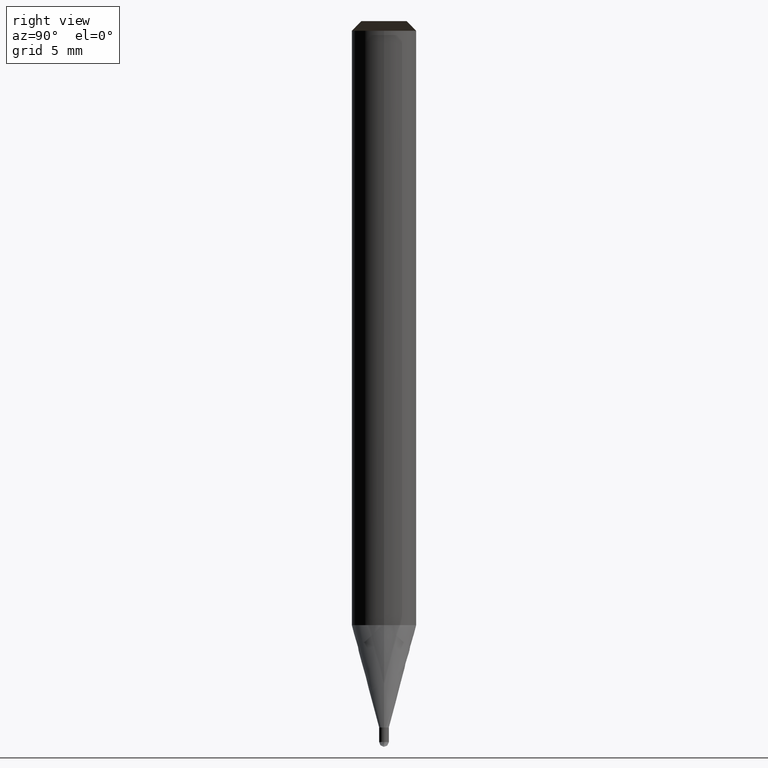
[diagram: clean part render]
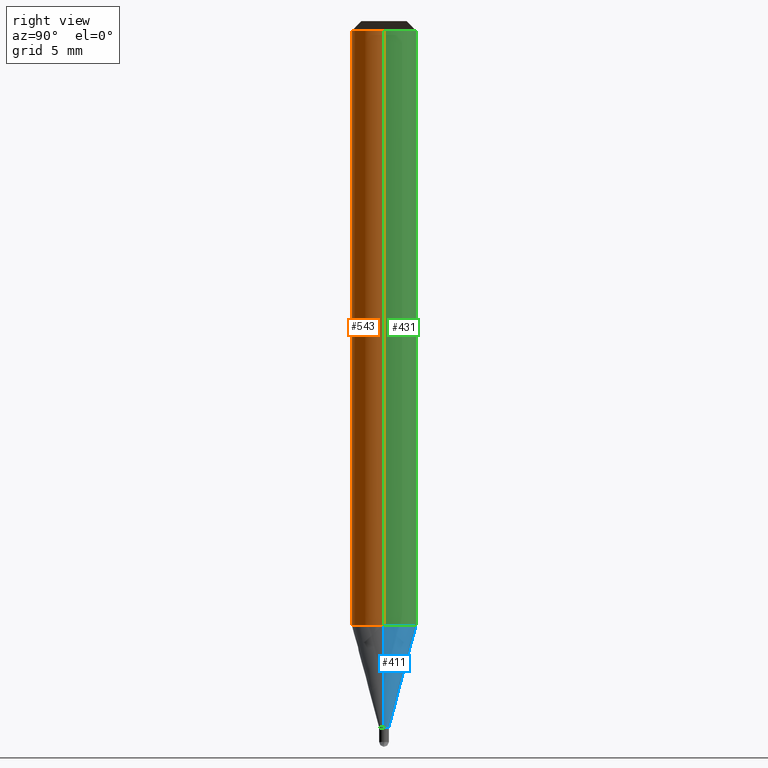
[diagram: same view with three faces highlighted in distinct colors, each labeled with its STEP entity id]
A machine part, right view with three faces highlighted in distinct colors.
Their STEP definitions:

[orange] entity #543 — the highlighted face is a freeform B-spline surface patch.
#215=CARTESIAN_POINT('',(2.0,0.0,-0.0));
#219=CARTESIAN_POINT('',(-2.0,0.0,-0.0));
#220=CARTESIAN_POINT('',(2.0,0.0,36.855));
#224=CARTESIAN_POINT('',(-2.0,0.0,36.855));
#234=CARTESIAN_POINT('',(-2.0,-2.0,-0.0));
#235=CARTESIAN_POINT('',(0.0,-2.0,-0.0));
#236=CARTESIAN_POINT('',(2.0,-2.0,-0.0));
#237=CARTESIAN_POINT('',(-2.0,-2.0,36.855));
#238=CARTESIAN_POINT('',(0.0,-2.0,36.855));
#239=CARTESIAN_POINT('',(2.0,-2.0,36.855));
#524=(
BOUNDED_SURFACE()
B_SPLINE_SURFACE(1,2,(
(#219,#234,#235,#236,#215),
(#224,#237,#238,#239,#220)
), .UNSPECIFIED.,.F.,.F.,.F.)
B_SPLINE_SURFACE_WITH_KNOTS((2,2),(3,2,3),(
0.0,1.0),(
0.0,0.5,1.0), .UNSPECIFIED.)
GEOMETRIC_REPRESENTATION_ITEM()
RATIONAL_B_SPLINE_SURFACE(((1.0,0.707106781187,1.0,0.707106781187,1.0),
(1.0,0.707106781187,1.0,0.707106781187,1.0)
))
REPRESENTATION_ITEM('')
SURFACE()
);
#525=(
BOUNDED_CURVE()
B_SPLINE_CURVE(1,(#224,#219),.UNSPECIFIED.,.F.,.F.)
B_SPLINE_CURVE_WITH_KNOTS((2,2),
(0.0,1.0),.UNSPECIFIED.)
CURVE()
GEOMETRIC_REPRESENTATION_ITEM()
RATIONAL_B_SPLINE_CURVE((1.0,1.0))
REPRESENTATION_ITEM('')
);
#526=(
BOUNDED_CURVE()
B_SPLINE_CURVE(2,(#219,#234,#235,#236,#215),.UNSPECIFIED.,.F.,.F.)
B_SPLINE_CURVE_WITH_KNOTS((3,2,3),
(0.0,0.5,1.0),.UNSPECIFIED.)
CURVE()
GEOMETRIC_REPRESENTATION_ITEM()
RATIONAL_B_SPLINE_CURVE((1.0,0.707106781187,1.0,0.707106781187,1.0))
REPRESENTATION_ITEM('')
);
#527=(
BOUNDED_CURVE()
B_SPLINE_CURVE(1,(#215,#220),.UNSPECIFIED.,.F.,.F.)
B_SPLINE_CURVE_WITH_KNOTS((2,2),
(0.0,1.0),.UNSPECIFIED.)
CURVE()
GEOMETRIC_REPRESENTATION_ITEM()
RATIONAL_B_SPLINE_CURVE((1.0,1.0))
REPRESENTATION_ITEM('')
);
#528=(
BOUNDED_CURVE()
B_SPLINE_CURVE(2,(#220,#239,#238,#237,#224),.UNSPECIFIED.,.F.,.F.)
B_SPLINE_CURVE_WITH_KNOTS((3,2,3),
(0.0,0.5,1.0),.UNSPECIFIED.)
CURVE()
GEOMETRIC_REPRESENTATION_ITEM()
RATIONAL_B_SPLINE_CURVE((1.0,0.707106781187,1.0,0.707106781187,1.0))
REPRESENTATION_ITEM('')
);
#529=VERTEX_POINT('',#215);
#530=VERTEX_POINT('',#219);
#531=VERTEX_POINT('',#220);
#532=VERTEX_POINT('',#224);
#533=EDGE_CURVE('',#532,#530,#525,.T.);
#534=EDGE_CURVE('',#530,#529,#526,.T.);
#535=EDGE_CURVE('',#529,#531,#527,.T.);
#536=EDGE_CURVE('',#531,#532,#528,.T.);
#537=ORIENTED_EDGE('',*,*,#533,.T.);
#538=ORIENTED_EDGE('',*,*,#534,.T.);
#539=ORIENTED_EDGE('',*,*,#535,.T.);
#540=ORIENTED_EDGE('',*,*,#536,.T.);
#541=EDGE_LOOP('',(#537,#538,#539,#540));
#542=FACE_OUTER_BOUND('',#541,.T.);
#543=ADVANCED_FACE('',(#542),#524,.T.);

[blue] entity #411 — the highlighted face is a freeform B-spline surface patch.
#210=CARTESIAN_POINT('',(0.3,0.0,-6.344486372867));
#211=CARTESIAN_POINT('',(0.3,0.3,-6.344486372867));
#212=CARTESIAN_POINT('',(0.0,0.3,-6.344486372867));
#213=CARTESIAN_POINT('',(-0.3,0.3,-6.344486372867));
#214=CARTESIAN_POINT('',(-0.3,0.0,-6.344486372867));
#215=CARTESIAN_POINT('',(2.0,0.0,-0.0));
#216=CARTESIAN_POINT('',(2.0,2.0,-0.0));
#217=CARTESIAN_POINT('',(0.0,2.0,-0.0));
#218=CARTESIAN_POINT('',(-2.0,2.0,-0.0));
#219=CARTESIAN_POINT('',(-2.0,0.0,-0.0));
#392=(
BOUNDED_SURFACE()
B_SPLINE_SURFACE(1,2,(
(#210,#211,#212,#213,#214),
(#215,#216,#217,#218,#219)
), .UNSPECIFIED.,.F.,.F.,.F.)
B_SPLINE_SURFACE_WITH_KNOTS((2,2),(3,2,3),(
0.0,1.0),(
0.0,0.5,1.0), .UNSPECIFIED.)
GEOMETRIC_REPRESENTATION_ITEM()
RATIONAL_B_SPLINE_SURFACE(((1.0,0.707106781187,1.0,0.707106781187,1.0),
(1.0,0.707106781187,1.0,0.707106781187,1.0)
))
REPRESENTATION_ITEM('')
SURFACE()
);
#393=(
BOUNDED_CURVE()
B_SPLINE_CURVE(2,(#215,#216,#217,#218,#219),.UNSPECIFIED.,.F.,.F.)
B_SPLINE_CURVE_WITH_KNOTS((3,2,3),
(0.0,0.5,1.0),.UNSPECIFIED.)
CURVE()
GEOMETRIC_REPRESENTATION_ITEM()
RATIONAL_B_SPLINE_CURVE((1.0,0.707106781187,1.0,0.707106781187,1.0))
REPRESENTATION_ITEM('')
);
#394=(
BOUNDED_CURVE()
B_SPLINE_CURVE(1,(#219,#214),.UNSPECIFIED.,.F.,.F.)
B_SPLINE_CURVE_WITH_KNOTS((2,2),
(0.0,1.0),.UNSPECIFIED.)
CURVE()
GEOMETRIC_REPRESENTATION_ITEM()
RATIONAL_B_SPLINE_CURVE((1.0,1.0))
REPRESENTATION_ITEM('')
);
#395=(
BOUNDED_CURVE()
B_SPLINE_CURVE(2,(#214,#213,#212,#211,#210),.UNSPECIFIED.,.F.,.F.)
B_SPLINE_CURVE_WITH_KNOTS((3,2,3),
(0.0,0.5,1.0),.UNSPECIFIED.)
CURVE()
GEOMETRIC_REPRESENTATION_ITEM()
RATIONAL_B_SPLINE_CURVE((1.0,0.707106781187,1.0,0.707106781187,1.0))
REPRESENTATION_ITEM('')
);
#396=(
BOUNDED_CURVE()
B_SPLINE_CURVE(1,(#210,#215),.UNSPECIFIED.,.F.,.F.)
B_SPLINE_CURVE_WITH_KNOTS((2,2),
(0.0,1.0),.UNSPECIFIED.)
CURVE()
GEOMETRIC_REPRESENTATION_ITEM()
RATIONAL_B_SPLINE_CURVE((1.0,1.0))
REPRESENTATION_ITEM('')
);
#397=VERTEX_POINT('',#210);
#398=VERTEX_POINT('',#214);
#399=VERTEX_POINT('',#215);
#400=VERTEX_POINT('',#219);
#401=EDGE_CURVE('',#399,#400,#393,.T.);
#402=EDGE_CURVE('',#400,#398,#394,.T.);
#403=EDGE_CURVE('',#398,#397,#395,.T.);
#404=EDGE_CURVE('',#397,#399,#396,.T.);
#405=ORIENTED_EDGE('',*,*,#401,.T.);
#406=ORIENTED_EDGE('',*,*,#402,.T.);
#407=ORIENTED_EDGE('',*,*,#403,.T.);
#408=ORIENTED_EDGE('',*,*,#404,.T.);
#409=EDGE_LOOP('',(#405,#406,#407,#408));
#410=FACE_OUTER_BOUND('',#409,.T.);
#411=ADVANCED_FACE('',(#410),#392,.T.);

[green] entity #431 — the highlighted face is a freeform B-spline surface patch.
#215=CARTESIAN_POINT('',(2.0,0.0,-0.0));
#216=CARTESIAN_POINT('',(2.0,2.0,-0.0));
#217=CARTESIAN_POINT('',(0.0,2.0,-0.0));
#218=CARTESIAN_POINT('',(-2.0,2.0,-0.0));
#219=CARTESIAN_POINT('',(-2.0,0.0,-0.0));
#220=CARTESIAN_POINT('',(2.0,0.0,36.855));
#221=CARTESIAN_POINT('',(2.0,2.0,36.855));
#222=CARTESIAN_POINT('',(0.0,2.0,36.855));
#223=CARTESIAN_POINT('',(-2.0,2.0,36.855));
#224=CARTESIAN_POINT('',(-2.0,0.0,36.855));
#412=(
BOUNDED_SURFACE()
B_SPLINE_SURFACE(1,2,(
(#215,#216,#217,#218,#219),
(#220,#221,#222,#223,#224)
), .UNSPECIFIED.,.F.,.F.,.F.)
B_SPLINE_SURFACE_WITH_KNOTS((2,2),(3,2,3),(
0.0,1.0),(
0.0,0.5,1.0), .UNSPECIFIED.)
GEOMETRIC_REPRESENTATION_ITEM()
RATIONAL_B_SPLINE_SURFACE(((1.0,0.707106781187,1.0,0.707106781187,1.0),
(1.0,0.707106781187,1.0,0.707106781187,1.0)
))
REPRESENTATION_ITEM('')
SURFACE()
);
#413=(
BOUNDED_CURVE()
B_SPLINE_CURVE(2,(#220,#221,#222,#223,#224),.UNSPECIFIED.,.F.,.F.)
B_SPLINE_CURVE_WITH_KNOTS((3,2,3),
(0.0,0.5,1.0),.UNSPECIFIED.)
CURVE()
GEOMETRIC_REPRESENTATION_ITEM()
RATIONAL_B_SPLINE_CURVE((1.0,0.707106781187,1.0,0.707106781187,1.0))
REPRESENTATION_ITEM('')
);
#414=(
BOUNDED_CURVE()
B_SPLINE_CURVE(1,(#224,#219),.UNSPECIFIED.,.F.,.F.)
B_SPLINE_CURVE_WITH_KNOTS((2,2),
(0.0,1.0),.UNSPECIFIED.)
CURVE()
GEOMETRIC_REPRESENTATION_ITEM()
RATIONAL_B_SPLINE_CURVE((1.0,1.0))
REPRESENTATION_ITEM('')
);
#415=(
BOUNDED_CURVE()
B_SPLINE_CURVE(2,(#219,#218,#217,#216,#215),.UNSPECIFIED.,.F.,.F.)
B_SPLINE_CURVE_WITH_KNOTS((3,2,3),
(0.0,0.5,1.0),.UNSPECIFIED.)
CURVE()
GEOMETRIC_REPRESENTATION_ITEM()
RATIONAL_B_SPLINE_CURVE((1.0,0.707106781187,1.0,0.707106781187,1.0))
REPRESENTATION_ITEM('')
);
#416=(
BOUNDED_CURVE()
B_SPLINE_CURVE(1,(#215,#220),.UNSPECIFIED.,.F.,.F.)
B_SPLINE_CURVE_WITH_KNOTS((2,2),
(0.0,1.0),.UNSPECIFIED.)
CURVE()
GEOMETRIC_REPRESENTATION_ITEM()
RATIONAL_B_SPLINE_CURVE((1.0,1.0))
REPRESENTATION_ITEM('')
);
#417=VERTEX_POINT('',#215);
#418=VERTEX_POINT('',#219);
#419=VERTEX_POINT('',#220);
#420=VERTEX_POINT('',#224);
#421=EDGE_CURVE('',#419,#420,#413,.T.);
#422=EDGE_CURVE('',#420,#418,#414,.T.);
#423=EDGE_CURVE('',#418,#417,#415,.T.);
#424=EDGE_CURVE('',#417,#419,#416,.T.);
#425=ORIENTED_EDGE('',*,*,#421,.T.);
#426=ORIENTED_EDGE('',*,*,#422,.T.);
#427=ORIENTED_EDGE('',*,*,#423,.T.);
#428=ORIENTED_EDGE('',*,*,#424,.T.);
#429=EDGE_LOOP('',(#425,#426,#427,#428));
#430=FACE_OUTER_BOUND('',#429,.T.);
#431=ADVANCED_FACE('',(#430),#412,.T.);